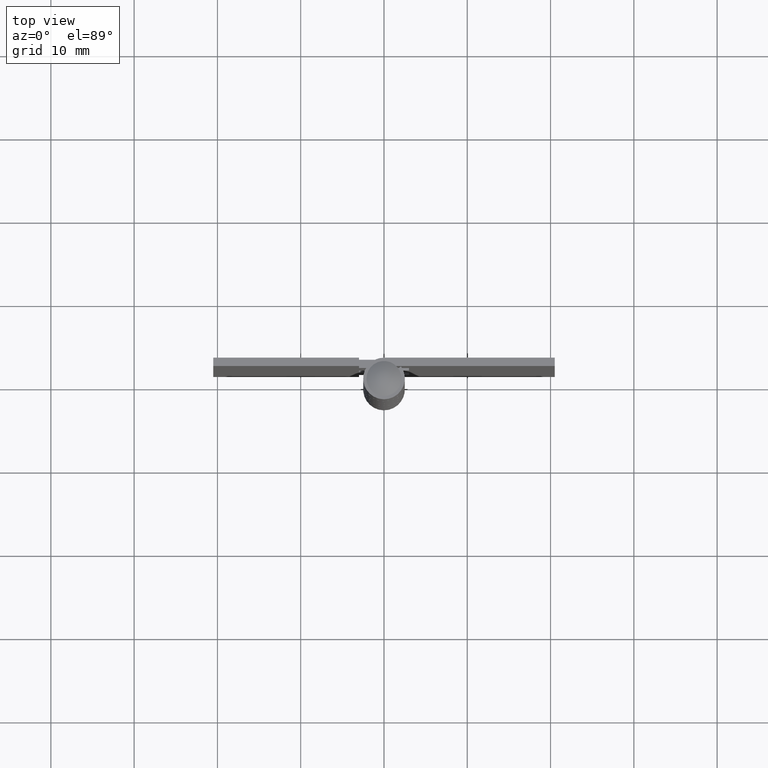
[diagram: clean part render]
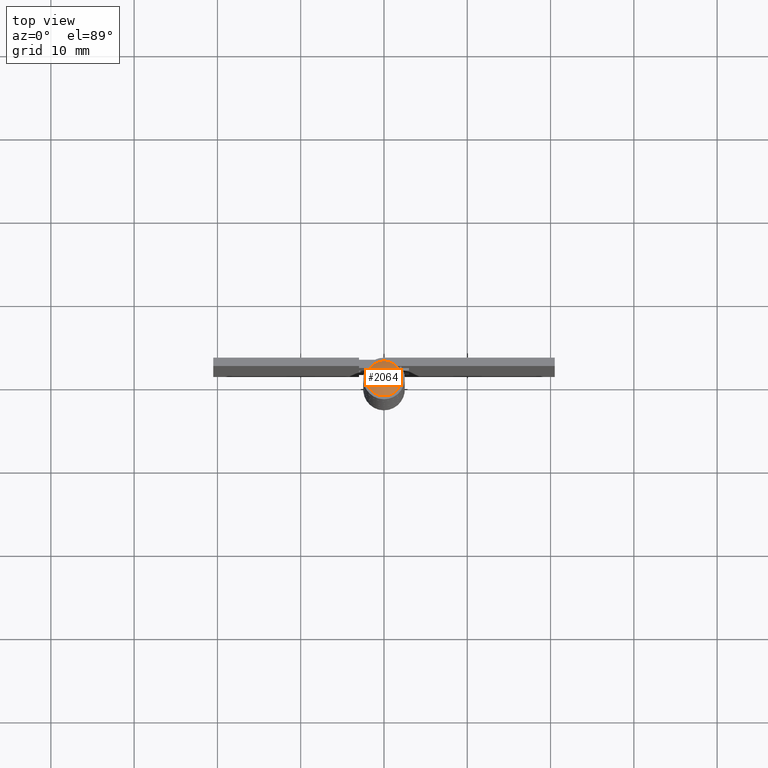
[diagram: same view with one face highlighted and labeled with its STEP entity id]
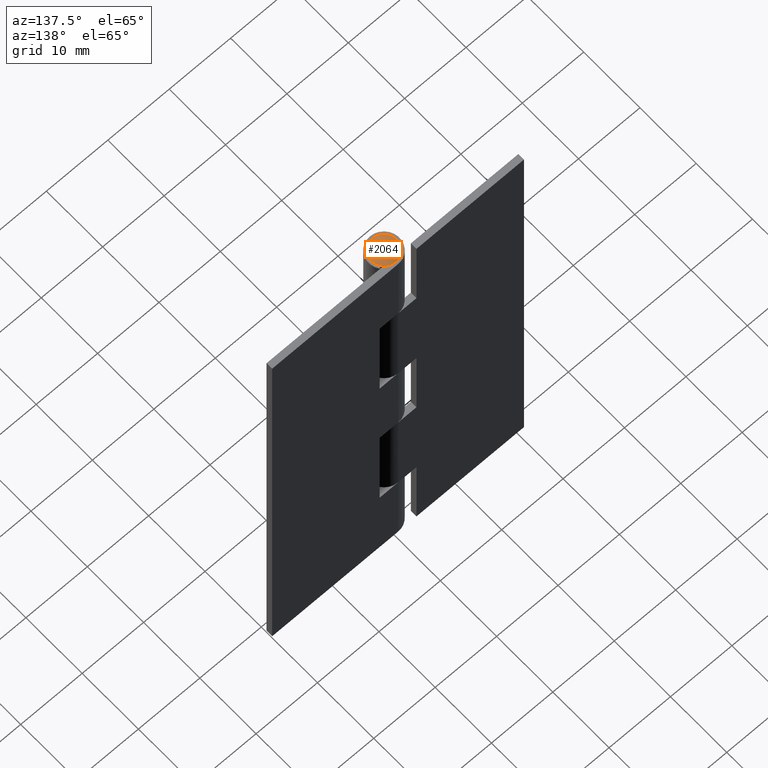
[diagram: same view with one face highlighted and labeled with its STEP entity id]
A machine part, top view. The second image highlights one B-rep face of the part: STEP entity #2064.
A second angle (auxiliary view) of the same face is appended — the face is thin or edge-on in the first view.
In plain terms, the highlighted face is a freeform B-spline surface patch.
Its self-contained STEP definition (entity closure, byte-faithful):
#1985=CARTESIAN_POINT('',(-2.100000001857390,0.0,76.0));
#1986=VERTEX_POINT('',#1985);
#1987=CARTESIAN_POINT('',(2.100000001857390,0.0,76.0));
#1988=VERTEX_POINT('',#1987);
#1989=CARTESIAN_POINT('',(-2.100000001857390,0.0,76.0));
#1990=CARTESIAN_POINT('',(-2.100085485094521,0.206164518217933,76.000000000000071));
#1991=CARTESIAN_POINT('',(-2.046431975182176,0.566900609146003,75.999999999999943));
#1992=CARTESIAN_POINT('',(-1.835317836356027,1.059423954893261,76.000000000000071));
#1993=CARTESIAN_POINT('',(-1.556886445706665,1.434829903692582,75.999999999999929));
#1994=CARTESIAN_POINT('',(-1.216979344692029,1.728009916863758,75.999999999999986));
#1995=CARTESIAN_POINT('',(-0.856467077625521,1.932235772674311,76.000000000000028));
#1996=CARTESIAN_POINT('',(-0.495822928575841,2.051353297508636,75.999999999999972));
#1997=CARTESIAN_POINT('',(-0.120953979306097,2.106939799281343,75.999999999999943));
#1998=CARTESIAN_POINT('',(0.327766067235872,2.096039290024351,76.000000000000156));
#1999=CARTESIAN_POINT('',(0.813132482843848,1.961676069023222,75.999999999999829));
#2000=CARTESIAN_POINT('',(1.320984295811238,1.665748233279439,76.000000000000483));
#2001=CARTESIAN_POINT('',(1.685532421472778,1.292159800263569,75.999999999999872));
#2002=CARTESIAN_POINT('',(1.932224769081307,0.856459657559851,76.000000000000014));
#2003=CARTESIAN_POINT('',(2.067592212146542,0.446662722112852,76.000000000000554));
#2004=CARTESIAN_POINT('',(2.100031021310506,0.154614581543337,75.999999999999545));
#2005=CARTESIAN_POINT('',(2.100000001857390,0.0,76.0));
#2006=B_SPLINE_CURVE_WITH_KNOTS('',3,(#1989,#1990,#1991,#1992,#1993,#1994,#1995,#1996,#1997,#1998,#1999,#2000,#2001,#2002,#2003,#2004,#2005),.UNSPECIFIED.,.F.,.U.,(4,1,1,1,1,1,1,1,1,1,1,1,1,1,4),(0.000000317428633,0.618487347093351,1.082382220472471,1.597836399331258,2.010195453277524,2.422555298807821,2.834912317333999,3.144169079661406,3.556426275034731,4.174958851010685,4.638874782893631,5.308950507496964,5.721303184207960,6.133662402242592,6.597510132823302),.UNSPECIFIED.);
#2007=EDGE_CURVE('',#1986,#1988,#2006,.T.);
#2009=CARTESIAN_POINT('',(2.100000001857390,0.0,76.0));
#2010=CARTESIAN_POINT('',(2.100289282263989,-0.274927167951055,75.999999999999886));
#2011=CARTESIAN_POINT('',(2.007558814623341,-0.738554817874505,76.000000000000199));
#2012=CARTESIAN_POINT('',(1.667051311536057,-1.322770766090473,75.999999999999957));
#2013=CARTESIAN_POINT('',(1.277115441070053,-1.694030370870074,76.000000000000014));
#2014=CARTESIAN_POINT('',(0.856458512403040,-1.932225826928769,75.999999999999829));
#2015=CARTESIAN_POINT('',(0.495822555584209,-2.051345859602183,76.000000000000028));
#2016=CARTESIAN_POINT('',(0.052786423422230,-2.117115522525961,76.000000000000142));
#2017=CARTESIAN_POINT('',(-0.484137798547289,-2.077599246656202,76.000000000000398));
#2018=CARTESIAN_POINT('',(-1.017270715241191,-1.864355371189687,75.999999999997655));
#2019=CARTESIAN_POINT('',(-1.488756965378560,-1.514629051099446,76.000000000001066));
#2020=CARTESIAN_POINT('',(-1.782322264092514,-1.147904410713490,75.999999999999545));
#2021=CARTESIAN_POINT('',(-2.032715518088632,-0.618343731758570,75.999999999999943));
#2022=CARTESIAN_POINT('',(-2.100248822278988,-0.257744010635892,76.000000000000028));
#2023=CARTESIAN_POINT('',(-2.100000001857390,0.0,76.0));
#2024=B_SPLINE_CURVE_WITH_KNOTS('',3,(#2009,#2010,#2011,#2012,#2013,#2014,#2015,#2016,#2017,#2018,#2019,#2020,#2021,#2022,#2023),.UNSPECIFIED.,.F.,.U.,(4,1,1,1,1,1,1,1,1,1,1,1,4),(0.000000317426424,0.824658564566163,1.391656733786514,2.010195453276125,2.422555298806560,2.834912317332866,3.144169079660372,3.762598380615489,4.432692501291843,4.845045073788940,5.515128393217889,5.824390889152947,6.597510132823317),.UNSPECIFIED.);
#2025=EDGE_CURVE('',#1988,#1986,#2024,.T.);
#2036=CARTESIAN_POINT('',(-1.990196816223411,-1.990196816223427,75.186416079252112));
#2037=CARTESIAN_POINT('',(-1.128123760216224,-2.256247520432466,75.863697621345693));
#2038=CARTESIAN_POINT('',(1.128123723510305,-2.256247520432466,75.863697621345722));
#2039=CARTESIAN_POINT('',(1.990196766739655,-1.990196831494979,75.186416118128676));
#2040=CARTESIAN_POINT('',(-2.256247520432455,-1.128123760216234,75.863697621345693));
#2041=CARTESIAN_POINT('',(-1.302203044303016,-1.302203044303021,76.749999999859355));
#2042=CARTESIAN_POINT('',(1.302203001933038,-1.302203044303021,76.749999999859384));
#2043=CARTESIAN_POINT('',(2.256247466648087,-1.128123770029978,75.863697671311172));
#2044=CARTESIAN_POINT('',(-2.256247520432455,1.128123723510295,75.863697621345693));
#2045=CARTESIAN_POINT('',(-1.302203044303016,1.302203001933034,76.749999999859355));
#2046=CARTESIAN_POINT('',(1.302203001933038,1.302203001933034,76.749999999859384));
#2047=CARTESIAN_POINT('',(2.256247466648087,1.128123733324037,75.863697671311172));
#2048=CARTESIAN_POINT('',(-1.990196831494966,1.990196766739640,75.186416118128705));
#2049=CARTESIAN_POINT('',(-1.128123770029966,2.256247466648077,75.863697671311158));
#2050=CARTESIAN_POINT('',(1.128123733324048,2.256247466648077,75.863697671311172));
#2051=CARTESIAN_POINT('',(1.990196782011209,1.990196782011193,75.186416157005311));
#2059=(BOUNDED_SURFACE()B_SPLINE_SURFACE(2,2,((#2036,#2040,#2044,#2048),(#2037,#2041,#2045,#2049),(#2038,#2042,#2046,#2050),(#2039,#2043,#2047,#2051)),.UNSPECIFIED.,.F.,.F.,.U.)B_SPLINE_SURFACE_WITH_KNOTS((3,1,3),(3,1,3),(0.0,2.417857876594772,4.835715674519334),(0.0,2.417857876594766,4.835715674519323),.UNSPECIFIED.)GEOMETRIC_REPRESENTATION_ITEM()RATIONAL_B_SPLINE_SURFACE(((1.308617352502917,1.154308676251459,1.154308676251459,1.308617342461387),(1.154308676251459,1.0,1.0,1.154308666209929),(1.154308676251459,1.0,1.0,1.154308666209929),(1.308617342461388,1.154308666209929,1.154308666209929,1.308617332419858)))REPRESENTATION_ITEM('')SURFACE());
#2060=ORIENTED_EDGE('',*,*,#2025,.F.);
#2061=ORIENTED_EDGE('',*,*,#2007,.F.);
#2062=EDGE_LOOP('',(#2060,#2061));
#2063=FACE_OUTER_BOUND('',#2062,.T.);
#2064=ADVANCED_FACE('',(#2063),#2059,.T.);